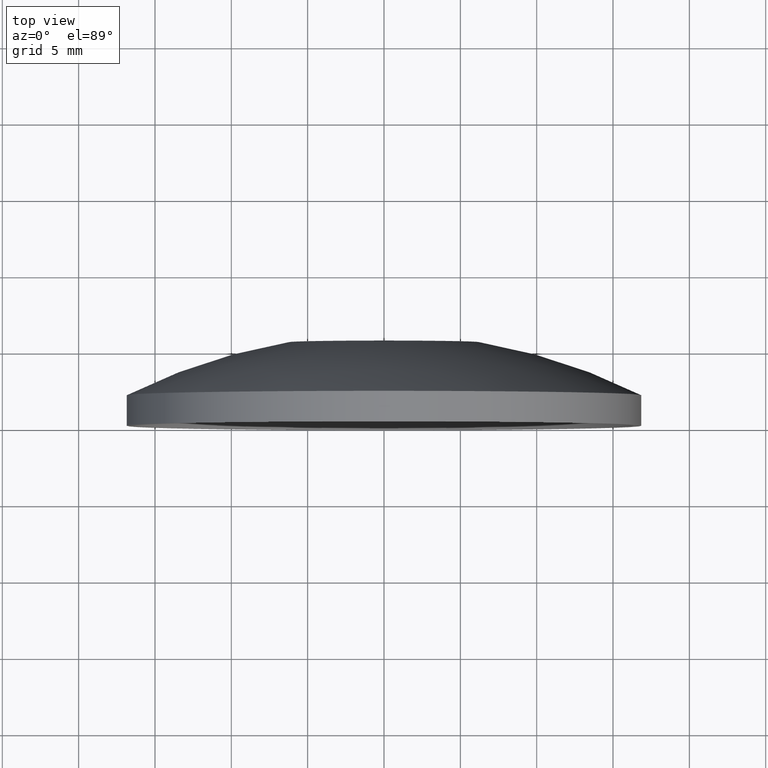
[diagram: clean part render]
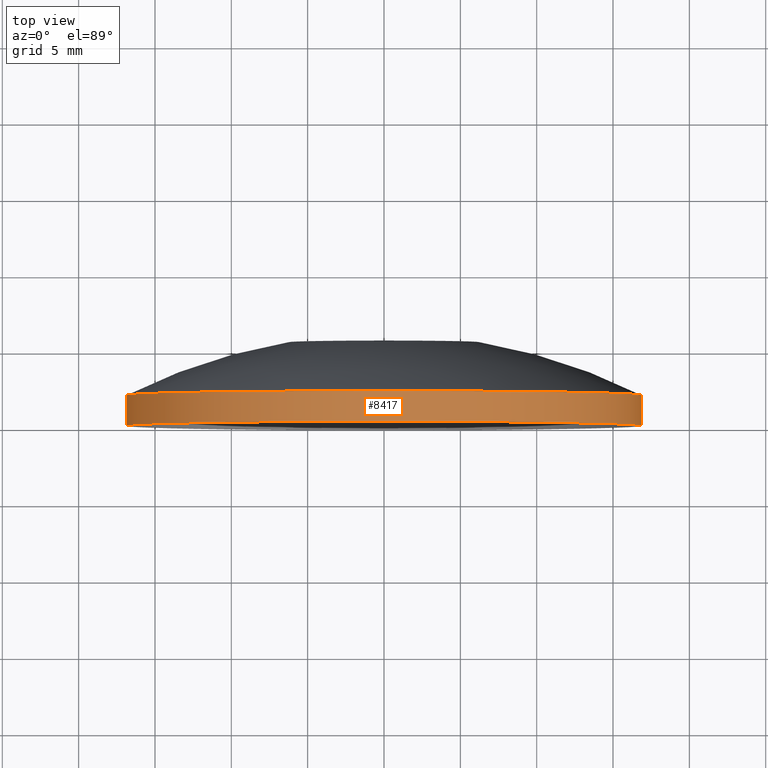
[diagram: same view with one face highlighted and labeled with its STEP entity id]
A machine part, top view. The second image highlights one B-rep face of the part: STEP entity #8417.
In plain terms, the highlighted cylindrical surface (partial cylindrical patch) has radius 16.85 mm, axis along (-0, -1, -0).
Its self-contained STEP definition (entity closure, byte-faithful):
#589 = DIRECTION ( 'NONE',  ( 1.000000000000000000, -5.842466306331382200E-015, 0.0000000000000000000 ) ) ;
#764 = AXIS2_PLACEMENT_3D ( 'NONE', #8131, #7143, #589 ) ;
#1225 = CARTESIAN_POINT ( 'NONE',  ( 16.84999999999999800, -4.663282616847321200E-015, 0.0000000000000000000 ) ) ;
#1369 = DIRECTION ( 'NONE',  ( -5.836103876533815000E-015, -1.000000000000000000, -0.0000000000000000000 ) ) ;
#1481 = CARTESIAN_POINT ( 'NONE',  ( -16.85000000000001200, 4.000000000000108400, 2.063529856563291400E-015 ) ) ;
#1966 = DIRECTION ( 'NONE',  ( 1.000000000000000000, -5.816728569299081700E-015, 0.0000000000000000000 ) ) ;
#2113 = CARTESIAN_POINT ( 'NONE',  ( -16.84999999999979500, 2.000000000000190500, 2.063529856563290200E-015 ) ) ;
#2221 = EDGE_CURVE ( 'NONE', #5446, #7726, #5327, .T. ) ;
#2251 = ORIENTED_EDGE ( 'NONE', *, *, #10563, .T. ) ;
#2345 = DIRECTION ( 'NONE',  ( 1.000000000000000000, -5.836103876533814200E-015, 0.0000000000000000000 ) ) ;
#2413 = EDGE_CURVE ( 'NONE', #9960, #7726, #5044, .T. ) ;
#3150 = AXIS2_PLACEMENT_3D ( 'NONE', #6133, #1369, #2345 ) ;
#3407 = VERTEX_POINT ( 'NONE', #8026 ) ;
#3819 = CARTESIAN_POINT ( 'NONE',  ( 0.0000000000000000000, 4.000000000000010700, 0.0000000000000000000 ) ) ;
#3924 = DIRECTION ( 'NONE',  ( -5.836103876533815000E-015, -1.000000000000000000, -0.0000000000000000000 ) ) ;
#4159 = EDGE_CURVE ( 'NONE', #3407, #5446, #5758, .T. ) ;
#4286 = ORIENTED_EDGE ( 'NONE', *, *, #4159, .F. ) ;
#4913 = CARTESIAN_POINT ( 'NONE',  ( -16.85000000000004400, 1.920134180223424900E-013, 2.063529856563293800E-015 ) ) ;
#5044 = LINE ( 'NONE', #1481, #5780 ) ;
#5273 = CIRCLE ( 'NONE', #764, 16.85000000000000100 ) ;
#5327 = CIRCLE ( 'NONE', #3150, 16.85000000000002300 ) ;
#5442 = VECTOR ( 'NONE', #3924, 1000.000000000000000 ) ;
#5446 = VERTEX_POINT ( 'NONE', #1225 ) ;
#5754 = FACE_OUTER_BOUND ( 'NONE', #9266, .T. ) ;
#5758 = LINE ( 'NONE', #10637, #5442 ) ;
#5780 = VECTOR ( 'NONE', #9107, 1000.000000000000000 ) ;
#6133 = CARTESIAN_POINT ( 'NONE',  ( -2.334441550613477400E-014, 9.367506770274758300E-014, 0.0000000000000000000 ) ) ;
#6205 = CYLINDRICAL_SURFACE ( 'NONE', #10443, 16.85000000000001200 ) ;
#6285 = ORIENTED_EDGE ( 'NONE', *, *, #2413, .T. ) ;
#7143 = DIRECTION ( 'NONE',  ( -5.836103876533815000E-015, -1.000000000000000000, -0.0000000000000000000 ) ) ;
#7726 = VERTEX_POINT ( 'NONE', #4913 ) ;
#8026 = CARTESIAN_POINT ( 'NONE',  ( 16.84999999999999400, 1.999999999999994900, 0.0000000000000000000 ) ) ;
#8131 = CARTESIAN_POINT ( 'NONE',  ( -1.167220775306714700E-014, 2.000000000000093300, 0.0000000000000000000 ) ) ;
#8417 = ADVANCED_FACE ( 'NONE', ( #5754 ), #6205, .T. ) ;
#8541 = DIRECTION ( 'NONE',  ( -5.836103876533815000E-015, -1.000000000000000000, -0.0000000000000000000 ) ) ;
#8915 = ORIENTED_EDGE ( 'NONE', *, *, #2221, .F. ) ;
#9107 = DIRECTION ( 'NONE',  ( -5.836103876533815000E-015, -1.000000000000000000, -0.0000000000000000000 ) ) ;
#9266 = EDGE_LOOP ( 'NONE', ( #2251, #6285, #8915, #4286 ) ) ;
#9960 = VERTEX_POINT ( 'NONE', #2113 ) ;
#10443 = AXIS2_PLACEMENT_3D ( 'NONE', #3819, #8541, #1966 ) ;
#10563 = EDGE_CURVE ( 'NONE', #3407, #9960, #5273, .T. ) ;
#10637 = CARTESIAN_POINT ( 'NONE',  ( 16.85000000000001200, 3.999999999999912500, 0.0000000000000000000 ) ) ;